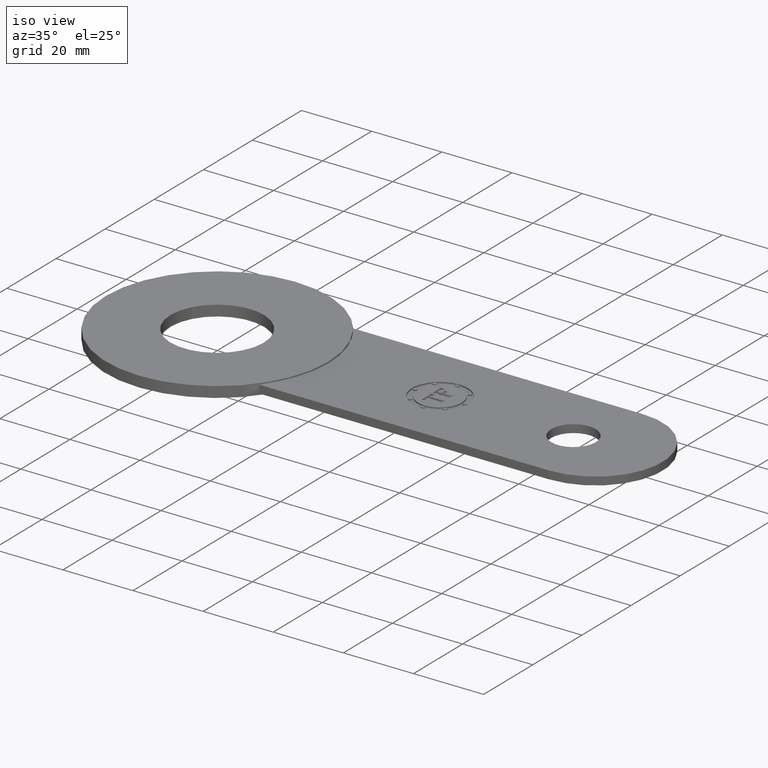
[diagram: clean part render]
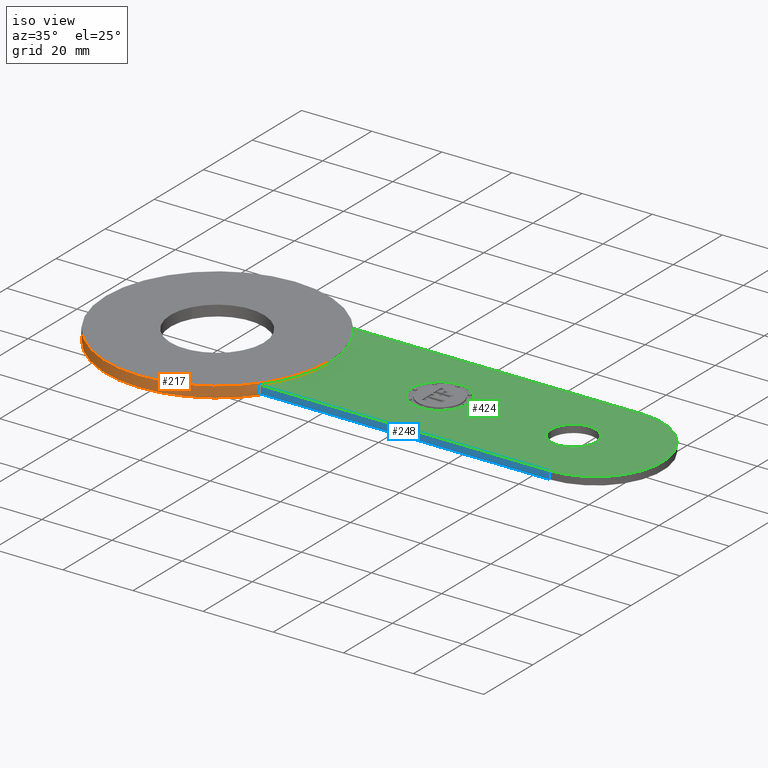
[diagram: same view with three faces highlighted in distinct colors, each labeled with its STEP entity id]
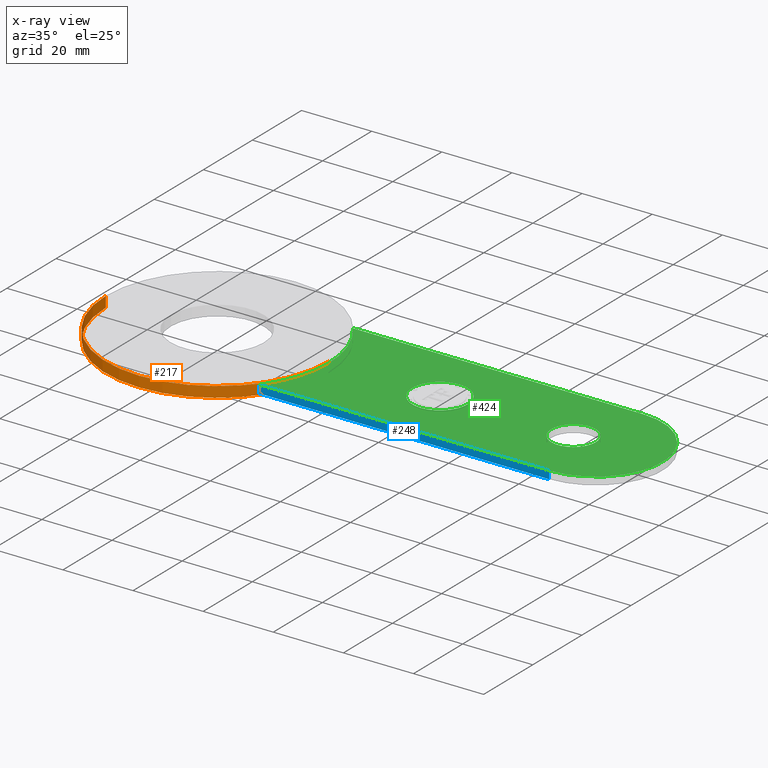
[diagram: x-ray of the same camera — body ghosted, the three highlighted faces saturated]
A machine part, iso view with three faces highlighted in distinct colors.
The next image is the same camera in x-ray (body ghosted, the three faces saturated) — at least one of them is partly hidden behind the body in this view.
Their STEP definitions:

[orange] entity #217 — the highlighted cylindrical surface (partial cylindrical patch) has radius 31.75 mm, axis along (0, 0, 1).
#91=AXIS2_PLACEMENT_3D('Circle Axis2P3D',#89,#90,$) ;
#123=AXIS2_PLACEMENT_3D('Cylinder Axis2P3D',#120,#121,#122) ;
#185=AXIS2_PLACEMENT_3D('Circle Axis2P3D',#183,#184,$) ;
#190=AXIS2_PLACEMENT_3D('Circle Axis2P3D',#188,#189,$) ;
#204=AXIS2_PLACEMENT_3D('Circle Axis2P3D',#202,#203,$) ;
#84=CARTESIAN_POINT('Vertex',(1.25000000001,0.,0.0600000000002)) ;
#86=CARTESIAN_POINT('Vertex',(-1.25000000001,1.53080849894E-016,0.0600000000002)) ;
#89=CARTESIAN_POINT('Axis2P3D Location',(0.,0.,0.0600000000002)) ;
#120=CARTESIAN_POINT('Axis2P3D Location',(0.,0.,0.)) ;
#125=CARTESIAN_POINT('Line Origine',(1.25000000001,0.,-8.74191357973E-018)) ;
#129=CARTESIAN_POINT('Vertex',(1.25000000001,0.,-0.0600000000002)) ;
#131=CARTESIAN_POINT('Vertex',(1.25000000001,0.,-0.0450000000002)) ;
#138=CARTESIAN_POINT('Vertex',(-1.25000000001,1.53080849894E-016,-0.0600000000002)) ;
#141=CARTESIAN_POINT('Line Origine',(-1.25000000001,7.08192362209E-016,-8.74191357973E-018)) ;
#146=CARTESIAN_POINT('Line Origine',(1.25000000001,0.,-8.74191357973E-018)) ;
#150=CARTESIAN_POINT('Vertex',(1.25000000001,0.,0.0450000000002)) ;
#183=CARTESIAN_POINT('Axis2P3D Location',(0.,0.,-0.0600000000002)) ;
#188=CARTESIAN_POINT('Axis2P3D Location',(0.,0.,-0.0450000000002)) ;
#192=CARTESIAN_POINT('Vertex',(1.,-0.750000000003,-0.0450000000002)) ;
#195=CARTESIAN_POINT('Line Origine',(1.,-0.750000000003,-8.74191357973E-018)) ;
#199=CARTESIAN_POINT('Vertex',(1.,-0.750000000003,0.0450000000002)) ;
#202=CARTESIAN_POINT('Axis2P3D Location',(0.,0.,0.0450000000002)) ;
#90=DIRECTION('Axis2P3D Direction',(0.,0.,0.0393700787402)) ;
#121=DIRECTION('Axis2P3D Direction',(0.,0.,0.0393700787402)) ;
#122=DIRECTION('Axis2P3D XDirection',(-0.0393700787402,2.23052712506E-017,0.)) ;
#126=DIRECTION('Vector Direction',(0.,0.,0.0393700787402)) ;
#142=DIRECTION('Vector Direction',(0.,0.,0.0393700787402)) ;
#147=DIRECTION('Vector Direction',(0.,0.,0.0393700787402)) ;
#184=DIRECTION('Axis2P3D Direction',(0.,0.,0.0393700787402)) ;
#189=DIRECTION('Axis2P3D Direction',(0.,0.,0.0393700787402)) ;
#196=DIRECTION('Vector Direction',(0.,0.,0.0393700787402)) ;
#203=DIRECTION('Axis2P3D Direction',(0.,0.,0.0393700787402)) ;
#127=VECTOR('Line Direction',#126,0.0393700787402) ;
#143=VECTOR('Line Direction',#142,0.0393700787402) ;
#148=VECTOR('Line Direction',#147,0.0393700787402) ;
#197=VECTOR('Line Direction',#196,0.0393700787402) ;
#208=ORIENTED_EDGE('',*,*,#152,.T.) ;
#209=ORIENTED_EDGE('',*,*,#93,.F.) ;
#210=ORIENTED_EDGE('',*,*,#145,.F.) ;
#211=ORIENTED_EDGE('',*,*,#187,.T.) ;
#212=ORIENTED_EDGE('',*,*,#133,.T.) ;
#213=ORIENTED_EDGE('',*,*,#194,.F.) ;
#214=ORIENTED_EDGE('',*,*,#201,.T.) ;
#215=ORIENTED_EDGE('',*,*,#206,.T.) ;
#217=ADVANCED_FACE('PartBody',(#216),#124,.T.) ;
#92=CIRCLE('generated circle',#91,1.25000000001) ;
#186=CIRCLE('generated circle',#185,1.25000000001) ;
#191=CIRCLE('generated circle',#190,1.25000000001) ;
#205=CIRCLE('generated circle',#204,1.25000000001) ;
#124=CYLINDRICAL_SURFACE('generated cylinder',#123,1.25000000001) ;
#93=EDGE_CURVE('',#87,#85,#92,.T.) ;
#133=EDGE_CURVE('',#130,#132,#128,.T.) ;
#145=EDGE_CURVE('',#139,#87,#144,.T.) ;
#152=EDGE_CURVE('',#151,#85,#149,.T.) ;
#187=EDGE_CURVE('',#139,#130,#186,.T.) ;
#194=EDGE_CURVE('',#193,#132,#191,.T.) ;
#201=EDGE_CURVE('',#193,#200,#198,.T.) ;
#206=EDGE_CURVE('',#200,#151,#205,.T.) ;
#207=EDGE_LOOP('',(#208,#209,#210,#211,#212,#213,#214,#215)) ;
#216=FACE_OUTER_BOUND('',#207,.T.) ;
#128=LINE('Line',#125,#127) ;
#144=LINE('Line',#141,#143) ;
#149=LINE('Line',#146,#148) ;
#198=LINE('Line',#195,#197) ;
#85=VERTEX_POINT('',#84) ;
#87=VERTEX_POINT('',#86) ;
#130=VERTEX_POINT('',#129) ;
#132=VERTEX_POINT('',#131) ;
#139=VERTEX_POINT('',#138) ;
#151=VERTEX_POINT('',#150) ;
#193=VERTEX_POINT('',#192) ;
#200=VERTEX_POINT('',#199) ;

[blue] entity #248 — the highlighted planar face has unit normal (0, -1, 0).
#221=AXIS2_PLACEMENT_3D('Plane Axis2P3D',#218,#219,#220) ;
#192=CARTESIAN_POINT('Vertex',(1.,-0.750000000003,-0.0450000000002)) ;
#195=CARTESIAN_POINT('Line Origine',(1.,-0.750000000003,-8.74191357973E-018)) ;
#199=CARTESIAN_POINT('Vertex',(1.,-0.750000000003,0.0450000000002)) ;
#218=CARTESIAN_POINT('Axis2P3D Location',(1.,-0.750000000003,0.)) ;
#223=CARTESIAN_POINT('Line Origine',(2.62500000001,-0.750000000003,-0.0450000000002)) ;
#227=CARTESIAN_POINT('Vertex',(4.25000000002,-0.750000000003,-0.0450000000002)) ;
#230=CARTESIAN_POINT('Line Origine',(4.25000000002,-0.750000000003,0.)) ;
#234=CARTESIAN_POINT('Vertex',(4.25000000002,-0.750000000003,0.0450000000002)) ;
#237=CARTESIAN_POINT('Line Origine',(2.62500000001,-0.750000000003,0.0450000000002)) ;
#196=DIRECTION('Vector Direction',(0.,0.,0.0393700787402)) ;
#219=DIRECTION('Axis2P3D Direction',(0.,-0.0393700787402,0.)) ;
#220=DIRECTION('Axis2P3D XDirection',(0.0393700787402,0.,0.)) ;
#224=DIRECTION('Vector Direction',(0.0393700787402,0.,0.)) ;
#231=DIRECTION('Vector Direction',(0.,0.,0.0393700787402)) ;
#238=DIRECTION('Vector Direction',(0.0393700787402,0.,0.)) ;
#197=VECTOR('Line Direction',#196,0.0393700787402) ;
#225=VECTOR('Line Direction',#224,0.0393700787402) ;
#232=VECTOR('Line Direction',#231,0.0393700787402) ;
#239=VECTOR('Line Direction',#238,0.0393700787402) ;
#243=ORIENTED_EDGE('',*,*,#201,.F.) ;
#244=ORIENTED_EDGE('',*,*,#229,.T.) ;
#245=ORIENTED_EDGE('',*,*,#236,.T.) ;
#246=ORIENTED_EDGE('',*,*,#241,.F.) ;
#248=ADVANCED_FACE('PartBody',(#247),#222,.T.) ;
#201=EDGE_CURVE('',#193,#200,#198,.T.) ;
#229=EDGE_CURVE('',#193,#228,#226,.T.) ;
#236=EDGE_CURVE('',#228,#235,#233,.T.) ;
#241=EDGE_CURVE('',#200,#235,#240,.T.) ;
#242=EDGE_LOOP('',(#243,#244,#245,#246)) ;
#247=FACE_OUTER_BOUND('',#242,.T.) ;
#198=LINE('Line',#195,#197) ;
#226=LINE('Line',#223,#225) ;
#233=LINE('Line',#230,#232) ;
#240=LINE('Line',#237,#239) ;
#222=PLANE('',#221) ;
#193=VERTEX_POINT('',#192) ;
#200=VERTEX_POINT('',#199) ;
#228=VERTEX_POINT('',#227) ;
#235=VERTEX_POINT('',#234) ;

[green] entity #424 — the highlighted planar face has unit normal (0, 0, 1).
#155=AXIS2_PLACEMENT_3D('Circle Axis2P3D',#153,#154,$) ;
#204=AXIS2_PLACEMENT_3D('Circle Axis2P3D',#202,#203,$) ;
#270=AXIS2_PLACEMENT_3D('Circle Axis2P3D',#268,#269,$) ;
#287=AXIS2_PLACEMENT_3D('Circle Axis2P3D',#285,#286,$) ;
#322=AXIS2_PLACEMENT_3D('Circle Axis2P3D',#320,#321,$) ;
#393=AXIS2_PLACEMENT_3D('Plane Axis2P3D',#390,#391,#392) ;
#408=AXIS2_PLACEMENT_3D('Circle Axis2P3D',#406,#407,$) ;
#417=AXIS2_PLACEMENT_3D('Circle Axis2P3D',#415,#416,$) ;
#150=CARTESIAN_POINT('Vertex',(1.25000000001,0.,0.0450000000002)) ;
#153=CARTESIAN_POINT('Axis2P3D Location',(0.,0.,0.0450000000002)) ;
#157=CARTESIAN_POINT('Vertex',(1.,0.750000000003,0.0450000000002)) ;
#199=CARTESIAN_POINT('Vertex',(1.,-0.750000000003,0.0450000000002)) ;
#202=CARTESIAN_POINT('Axis2P3D Location',(0.,0.,0.0450000000002)) ;
#234=CARTESIAN_POINT('Vertex',(4.25000000002,-0.750000000003,0.0450000000002)) ;
#237=CARTESIAN_POINT('Line Origine',(2.62500000001,-0.750000000003,0.0450000000002)) ;
#265=CARTESIAN_POINT('Vertex',(4.25000000002,0.750000000003,0.0450000000002)) ;
#268=CARTESIAN_POINT('Axis2P3D Location',(4.25000000002,0.,0.0450000000002)) ;
#285=CARTESIAN_POINT('Axis2P3D Location',(4.00000000002,0.,0.0450000000002)) ;
#289=CARTESIAN_POINT('Vertex',(4.25000000002,0.,0.0450000000002)) ;
#291=CARTESIAN_POINT('Vertex',(3.75000000002,3.06161699788E-017,0.0450000000002)) ;
#320=CARTESIAN_POINT('Axis2P3D Location',(4.00000000002,0.,0.0450000000002)) ;
#364=CARTESIAN_POINT('Line Origine',(2.62500000001,0.750000000003,0.0450000000002)) ;
#390=CARTESIAN_POINT('Axis2P3D Location',(0.,0.,0.0450000000002)) ;
#406=CARTESIAN_POINT('Axis2P3D Location',(2.50000000001,-2.28267606771E-015,0.0450000000002)) ;
#410=CARTESIAN_POINT('Vertex',(2.50000000001,0.312499996876,0.0450000000002)) ;
#412=CARTESIAN_POINT('Vertex',(2.50000000001,-0.312499996876,0.0450000000002)) ;
#415=CARTESIAN_POINT('Axis2P3D Location',(2.50000000001,-2.28267606771E-015,0.0450000000002)) ;
#154=DIRECTION('Axis2P3D Direction',(0.,0.,0.0393700787402)) ;
#203=DIRECTION('Axis2P3D Direction',(0.,0.,0.0393700787402)) ;
#238=DIRECTION('Vector Direction',(0.0393700787402,0.,0.)) ;
#269=DIRECTION('Axis2P3D Direction',(0.,0.,0.0393700787402)) ;
#286=DIRECTION('Axis2P3D Direction',(0.,0.,0.0393700787402)) ;
#321=DIRECTION('Axis2P3D Direction',(0.,0.,0.0393700787402)) ;
#365=DIRECTION('Vector Direction',(-0.0393700787402,0.,0.)) ;
#391=DIRECTION('Axis2P3D Direction',(0.,0.,0.0393700787402)) ;
#392=DIRECTION('Axis2P3D XDirection',(0.0393700787402,0.,0.)) ;
#407=DIRECTION('Axis2P3D Direction',(0.,0.,0.0393700787402)) ;
#416=DIRECTION('Axis2P3D Direction',(0.,0.,0.0393700787402)) ;
#239=VECTOR('Line Direction',#238,0.0393700787402) ;
#366=VECTOR('Line Direction',#365,0.0393700787402) ;
#396=ORIENTED_EDGE('',*,*,#241,.T.) ;
#397=ORIENTED_EDGE('',*,*,#272,.T.) ;
#398=ORIENTED_EDGE('',*,*,#368,.T.) ;
#399=ORIENTED_EDGE('',*,*,#159,.F.) ;
#400=ORIENTED_EDGE('',*,*,#206,.F.) ;
#403=ORIENTED_EDGE('',*,*,#324,.F.) ;
#404=ORIENTED_EDGE('',*,*,#293,.F.) ;
#421=ORIENTED_EDGE('',*,*,#414,.F.) ;
#422=ORIENTED_EDGE('',*,*,#419,.F.) ;
#405=FACE_BOUND('',#402,.T.) ;
#423=FACE_BOUND('',#420,.T.) ;
#424=ADVANCED_FACE('PartBody',(#401,#405,#423),#394,.T.) ;
#156=CIRCLE('generated circle',#155,1.25000000001) ;
#205=CIRCLE('generated circle',#204,1.25000000001) ;
#271=CIRCLE('generated circle',#270,0.750000000003) ;
#288=CIRCLE('generated circle',#287,0.250000000001) ;
#323=CIRCLE('generated circle',#322,0.250000000001) ;
#409=CIRCLE('generated circle',#408,0.312499996876) ;
#418=CIRCLE('generated circle',#417,0.312499996876) ;
#159=EDGE_CURVE('',#151,#158,#156,.T.) ;
#206=EDGE_CURVE('',#200,#151,#205,.T.) ;
#241=EDGE_CURVE('',#200,#235,#240,.T.) ;
#272=EDGE_CURVE('',#235,#266,#271,.T.) ;
#293=EDGE_CURVE('',#290,#292,#288,.T.) ;
#324=EDGE_CURVE('',#292,#290,#323,.T.) ;
#368=EDGE_CURVE('',#266,#158,#367,.T.) ;
#414=EDGE_CURVE('',#411,#413,#409,.T.) ;
#419=EDGE_CURVE('',#413,#411,#418,.T.) ;
#395=EDGE_LOOP('',(#396,#397,#398,#399,#400)) ;
#402=EDGE_LOOP('',(#403,#404)) ;
#420=EDGE_LOOP('',(#421,#422)) ;
#401=FACE_OUTER_BOUND('',#395,.T.) ;
#240=LINE('Line',#237,#239) ;
#367=LINE('Line',#364,#366) ;
#394=PLANE('',#393) ;
#151=VERTEX_POINT('',#150) ;
#158=VERTEX_POINT('',#157) ;
#200=VERTEX_POINT('',#199) ;
#235=VERTEX_POINT('',#234) ;
#266=VERTEX_POINT('',#265) ;
#290=VERTEX_POINT('',#289) ;
#292=VERTEX_POINT('',#291) ;
#411=VERTEX_POINT('',#410) ;
#413=VERTEX_POINT('',#412) ;